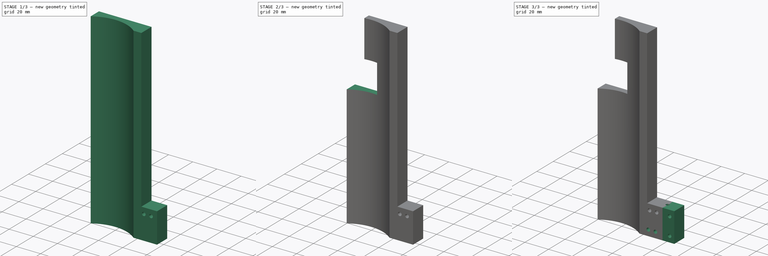
[diagram: build sequence overview — one tinted view per stage of 3, left to right]
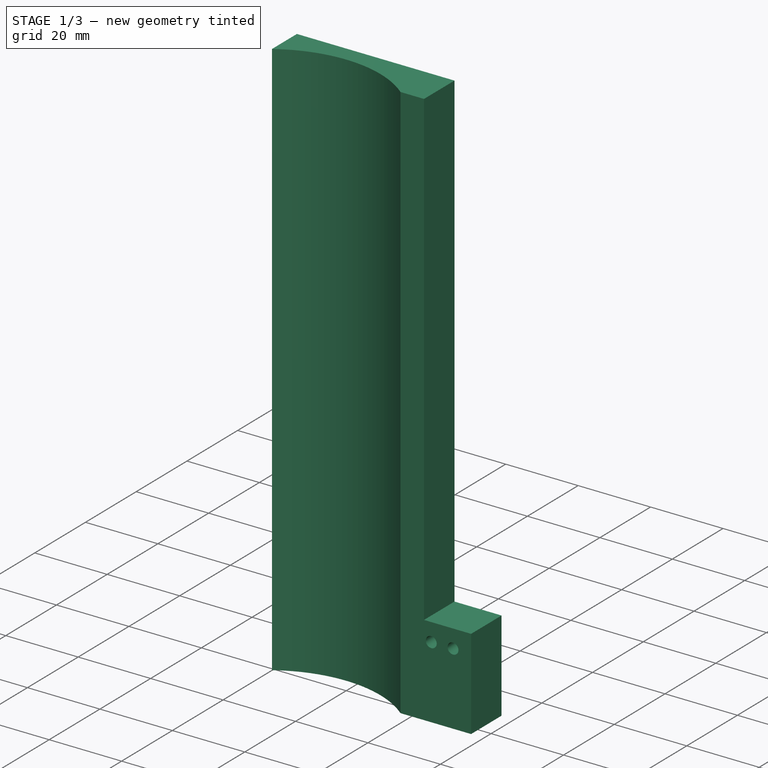
[diagram: stage 1 of 3 — iso view after this stage's code; geometry added in this stage tinted green]
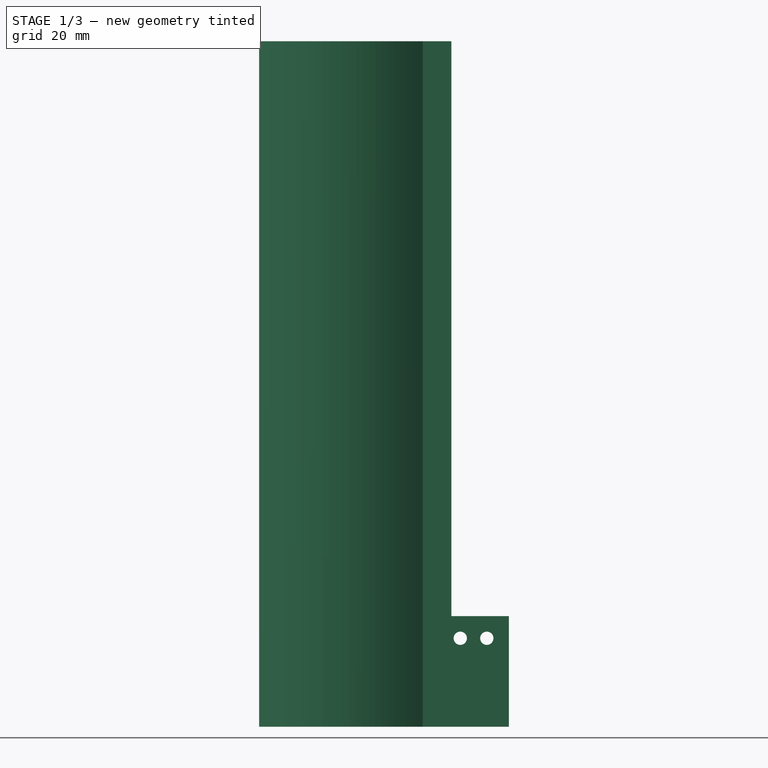
[diagram: stage 1 of 3 — front view after this stage's code; geometry added in this stage tinted green]
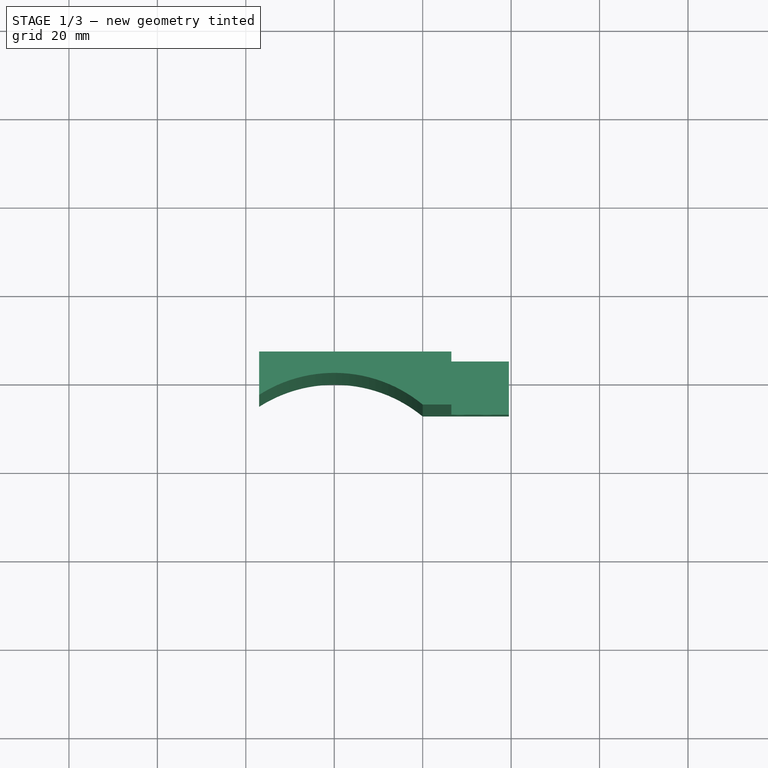
[diagram: stage 1 of 3 — top view after this stage's code; geometry added in this stage tinted green]
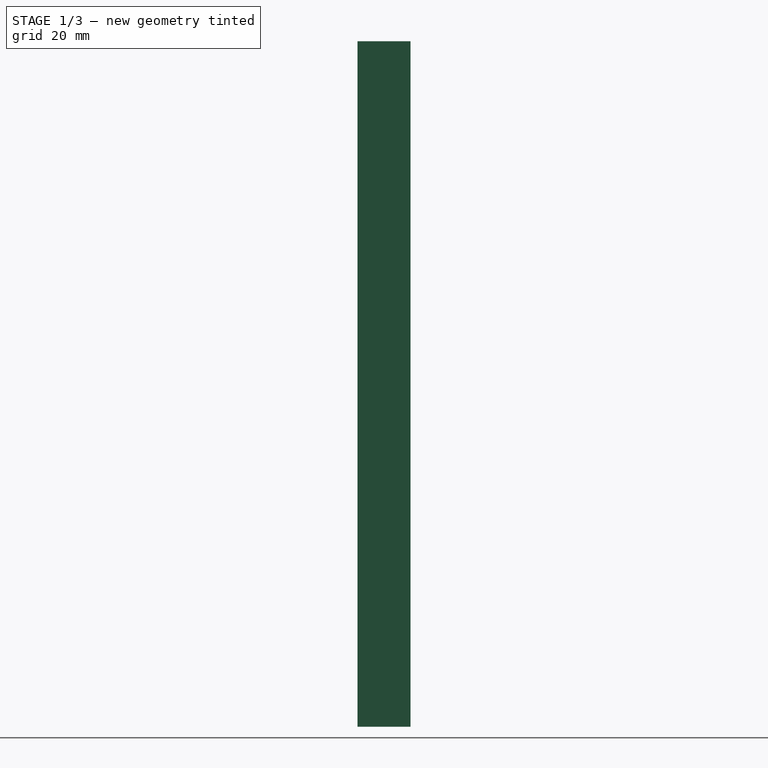
[diagram: stage 1 of 3 — right view after this stage's code; geometry added in this stage tinted green]
FCSTD DOCUMENT  (FreeCAD 0.16R6707 (Git))
Label: pince_secondaire_droite
License: All rights reserved
LicenseURL: http://en.wikipedia.org/wiki/All_rights_reserved
objects: Sketcher::SketchObject×8, PartDesign::Pocket×6, PartDesign::Pad×2
note: 24 computed .brp shape members not serialized (recipe doc carries the construction recipe); baked Part::Feature solids carry a one-line shape summary decoded from their .brp

FEATURE [Sketcher::SketchObject] Sketch
  sketch-geometry (7):
    g0: LineSegment StartX=39.5 StartY=4.83619 StartZ=0 EndX=-20 EndY=4.83619 EndZ=0
    g1: LineSegment StartX=-20 StartY=4.83619 StartZ=0 EndX=-20 EndY=-7.16381 EndZ=0
    g2: GeomPoint [constr] X=20 Y=-7.16381 Z=0
    g3: ArcOfCircle CenterX=0 CenterY=-31.5 CenterZ=0 NormalX=0 NormalY=0 NormalZ=1 Radius=31.5 StartAngle=0.882891 EndAngle=2.2587
    g4: LineSegment StartX=20 StartY=-7.16381 StartZ=0 EndX=39.5 EndY=-7.16381 EndZ=0
    g5: GeomPoint [constr] X=42.5 Y=-1.16381 Z=0
    g6: LineSegment StartX=39.5 StartY=4.83619 StartZ=0 EndX=39.5 EndY=-7.16381 EndZ=0
  constraints (19):
    c: Coincident(g0,g1)
    c: Horizontal(g0)
    c: Vertical(g1)
    c: DistanceX(g1,g-1) = 20
    c: DistanceX(g-1,g2) = 20
    c: DistanceY(g1,g2) = 0
    c: Coincident(g3,g1)
    c: Coincident(g3,g2)
    c: PointOnObject(g-1,g3)
    c: DistanceY(g3) = -31.5
    c: DistanceY(g2,g4) = 0
    c: Coincident(g4,g2)
    c: DistanceX(g-1,g4) = 39.5
    c: DistanceY(g2,g5) = 6
    c: DistanceX(g-1,g5) = 42.5
    c: Coincident(g6,g0)
    c: Coincident(g6,g4)
    c: Vertical(g6)
    c: Distance(g6) = 12
FEATURE [PartDesign::Pad] Pad
  Length = 155
  Length2 = 100
  Reversed = true
  Sketch = -> Sketch
  Type = 0
FEATURE [Sketcher::SketchObject] Sketch001
  Placement = pos=(0,-7.16381,0) rot=(1,0,0;1.5708rad)
  Support = -> Pad [Face4]
  sketch-geometry (6):
    g0: LineSegment StartX=26.5 StartY=-130 StartZ=0 EndX=39.5 EndY=-130 EndZ=0
    g1: LineSegment StartX=39.5 StartY=-130 StartZ=0 EndX=39.5 EndY=0 EndZ=0
    g2: LineSegment StartX=39.5 StartY=0 StartZ=0 EndX=26.5 EndY=0 EndZ=0
    g3: LineSegment StartX=26.5 StartY=0 StartZ=0 EndX=26.5 EndY=-130 EndZ=0
    g4: Circle CenterX=28.5 CenterY=-135 CenterZ=0 NormalX=0 NormalY=0 NormalZ=1 Radius=1.5
    g5: Circle CenterX=34.5 CenterY=-135 CenterZ=0 NormalX=0 NormalY=0 NormalZ=1 Radius=1.5
  constraints (18):
    c: Coincident(g0,g1)
    c: Coincident(g1,g2)
    c: Coincident(g2,g3)
    c: Coincident(g3,g0)
    c: Horizontal(g0)
    c: Horizontal(g2)
    c: Vertical(g1)
    c: Vertical(g3)
    c: DistanceX(g1) = 39.5
    c: Distance(g0) = 13
    c: DistanceY(g1) = 0
    c: DistanceY(g4,g5) = 0
    c: DistanceX(g4,g5) = 6
    c: DistanceX(g0,g4) = 2
    c: Radius(g4) = 1.5
    c: Equal(g4,g5)
    c: DistanceY(g0,g4) = -5
    c: Distance(g3) = 130
FEATURE [PartDesign::Pocket] Pocket
  Length = 5
  Sketch = -> Sketch001
  Type = 1
FEATURE [Sketcher::SketchObject] Sketch002
  Placement = pos=(0,0,-155) rot=(1,0,0;3.14159rad)
  Support = -> Pocket [Face6]
  sketch-geometry (4):
    g0: LineSegment StartX=-22.5832 StartY=11.7343 StartZ=0 EndX=-17 EndY=11.7343 EndZ=0
    g1: LineSegment StartX=-17 StartY=11.7343 StartZ=0 EndX=-17 EndY=-12.2158 EndZ=0
    g2: LineSegment StartX=-17 StartY=-12.2158 StartZ=0 EndX=-22.5832 EndY=-12.2158 EndZ=0
    g3: LineSegment StartX=-22.5832 StartY=-12.2158 StartZ=0 EndX=-22.5832 EndY=11.7343 EndZ=0
  constraints (9):
    c: Coincident(g0,g1)
    c: Coincident(g1,g2)
    c: Coincident(g2,g3)
    c: Coincident(g3,g0)
    c: Horizontal(g0)
    c: Horizontal(g2)
    c: Vertical(g1)
    c: Vertical(g3)
    c: DistanceX(g1,g-1) = 17
FEATURE [PartDesign::Pocket] Pocket001
  Length = 5
  Sketch = -> Sketch002
  Type = 1
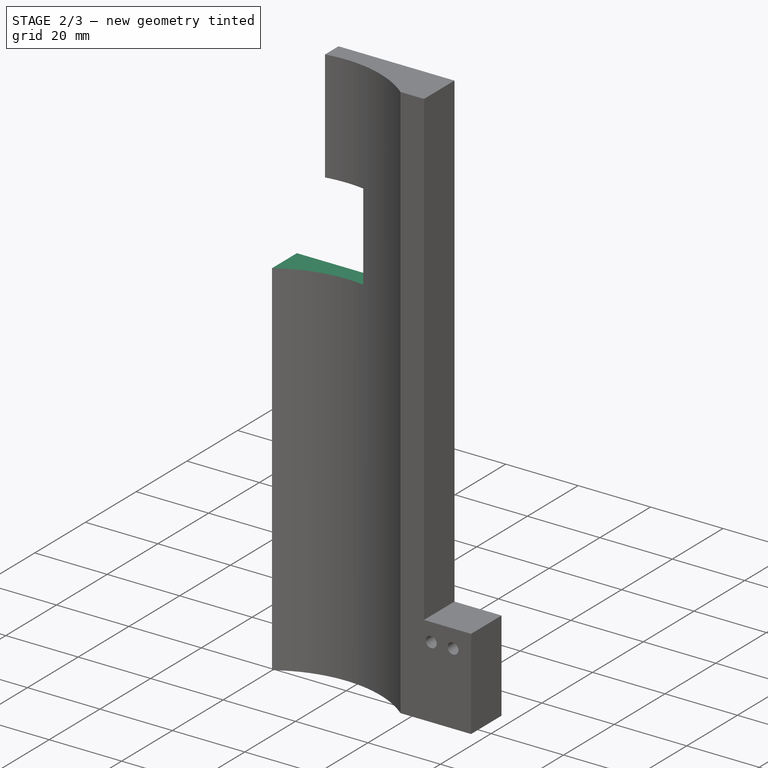
[diagram: stage 2 of 3 — iso view after this stage's code; geometry added in this stage tinted green]
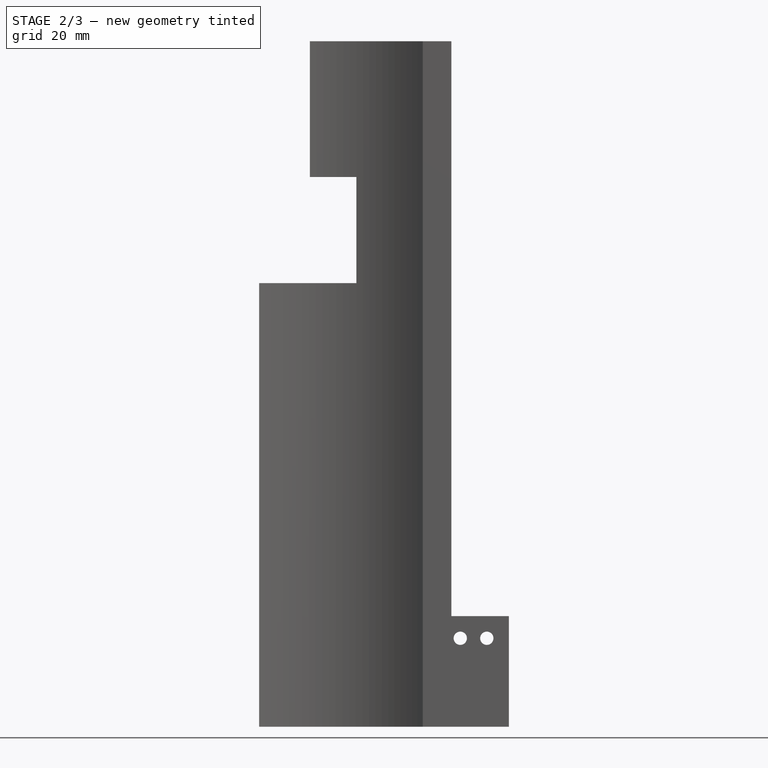
[diagram: stage 2 of 3 — front view after this stage's code; geometry added in this stage tinted green]
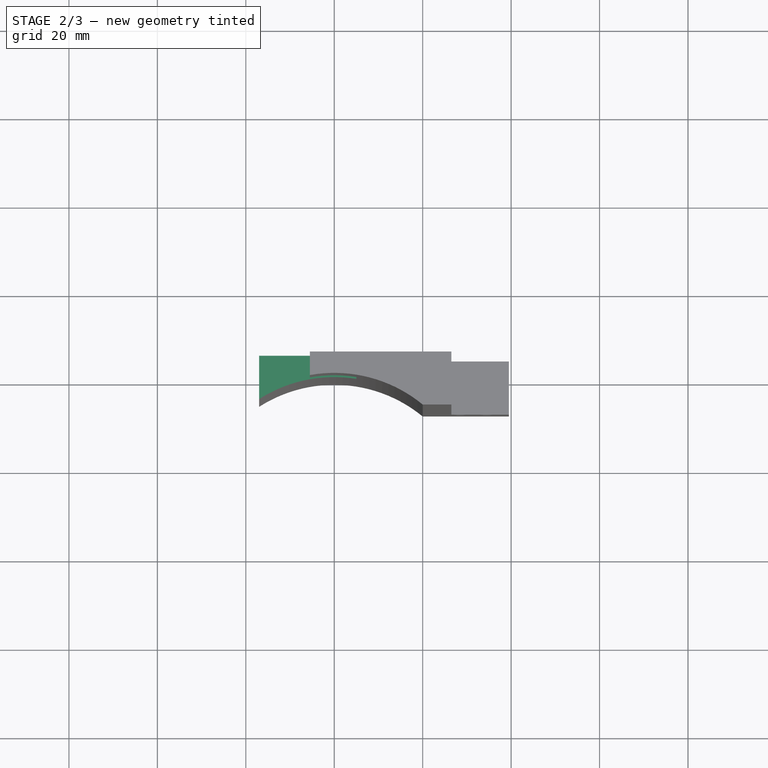
[diagram: stage 2 of 3 — top view after this stage's code; geometry added in this stage tinted green]
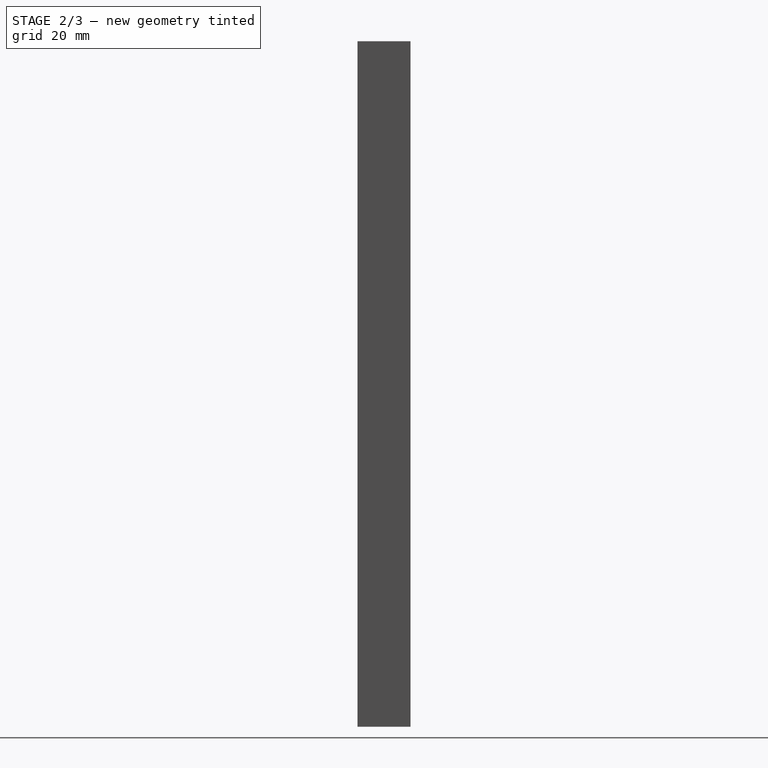
[diagram: stage 2 of 3 — right view after this stage's code; geometry added in this stage tinted green]
FEATURE [Sketcher::SketchObject] Sketch003
  Placement = pos=(0,4.83619,0) rot=(0,0.707107,0.707107;3.14159rad)
  Support = -> Pocket001 [Face1]
  sketch-geometry (4):
    g0: LineSegment StartX=-5 StartY=-54.7 StartZ=0 EndX=17 EndY=-54.7 EndZ=0
    g1: LineSegment StartX=17 StartY=-54.7 StartZ=0 EndX=17 EndY=-30.7 EndZ=0
    g2: LineSegment StartX=17 StartY=-30.7 StartZ=0 EndX=-5 EndY=-30.7 EndZ=0
    g3: LineSegment StartX=-5 StartY=-30.7 StartZ=0 EndX=-5 EndY=-54.7 EndZ=0
  constraints (12):
    c: Coincident(g0,g1)
    c: Coincident(g1,g2)
    c: Coincident(g2,g3)
    c: Coincident(g3,g0)
    c: Horizontal(g0)
    c: Horizontal(g2)
    c: Vertical(g1)
    c: Vertical(g3)
    c: DistanceY(g2) = -30.7
    c: Distance(g2) = 22
    c: DistanceX(g1) = 17
    c: Distance(g3) = 24
FEATURE [PartDesign::Pocket] Pocket002
  Length = 5
  Sketch = -> Sketch003
  Type = 1
FEATURE [Sketcher::SketchObject] Sketch004
  Support = -> Pocket002 [Face4]
  sketch-geometry (4):
    g0: LineSegment StartX=-5.5 StartY=-5.52533 StartZ=0 EndX=-17 EndY=-5.52533 EndZ=0
    g1: LineSegment StartX=-17 StartY=-5.52533 StartZ=0 EndX=-17 EndY=7.39931 EndZ=0
    g2: LineSegment StartX=-17 StartY=7.39931 StartZ=0 EndX=-5.5 EndY=7.39931 EndZ=0
    g3: LineSegment StartX=-5.5 StartY=7.39931 StartZ=0 EndX=-5.5 EndY=-5.52533 EndZ=0
  constraints (10):
    c: Coincident(g0,g1)
    c: Coincident(g1,g2)
    c: Coincident(g2,g3)
    c: Coincident(g3,g0)
    c: Horizontal(g0)
    c: Horizontal(g2)
    c: Vertical(g1)
    c: Vertical(g3)
    c: Distance(g2) = 11.5
    c: DistanceX(g1) = -17
FEATURE [PartDesign::Pocket] Pocket003
  Length = 31
  Sketch = -> Sketch004
  Type = 0
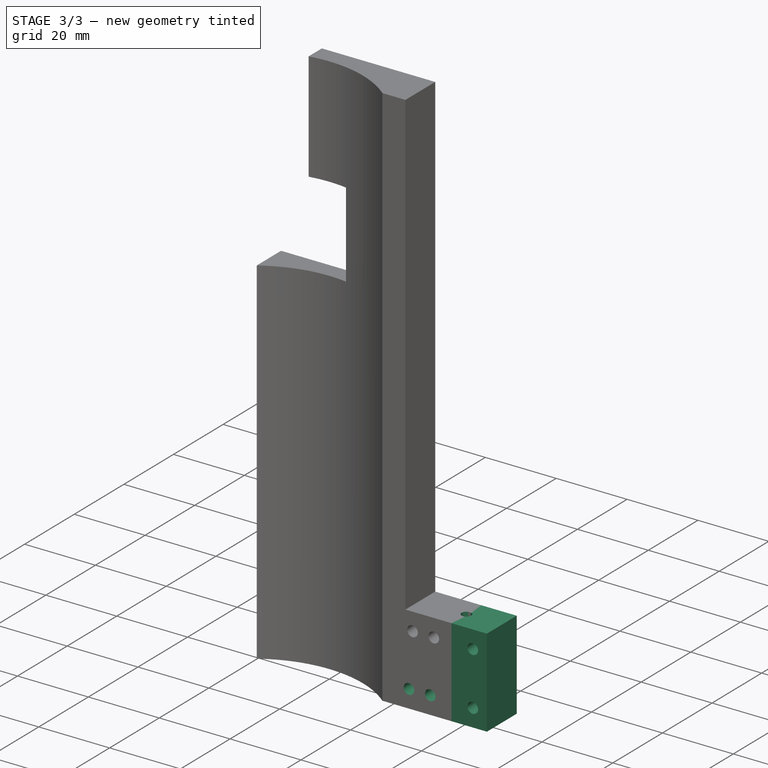
[diagram: stage 3 of 3 — iso view after this stage's code; geometry added in this stage tinted green]
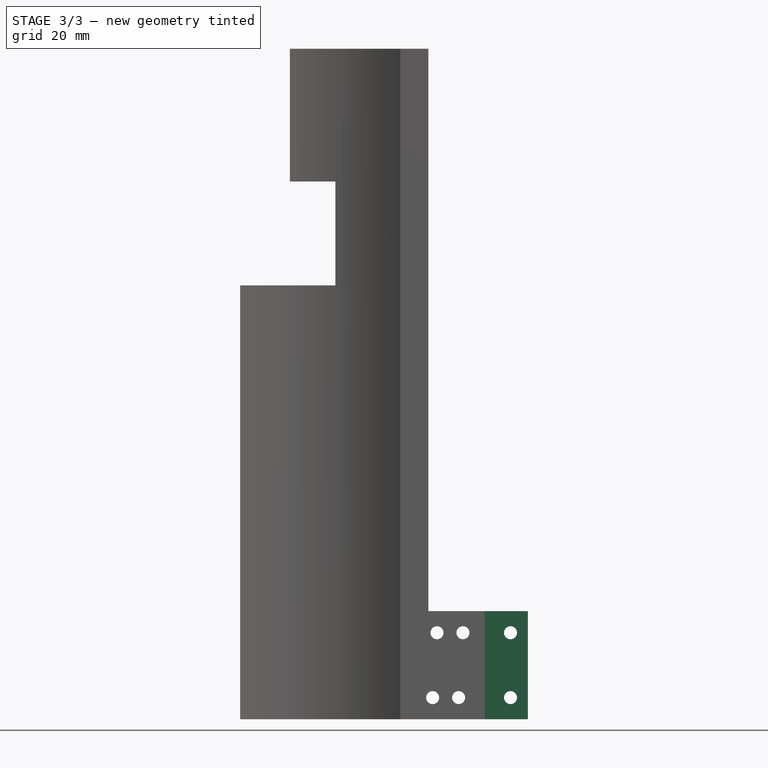
[diagram: stage 3 of 3 — front view after this stage's code; geometry added in this stage tinted green]
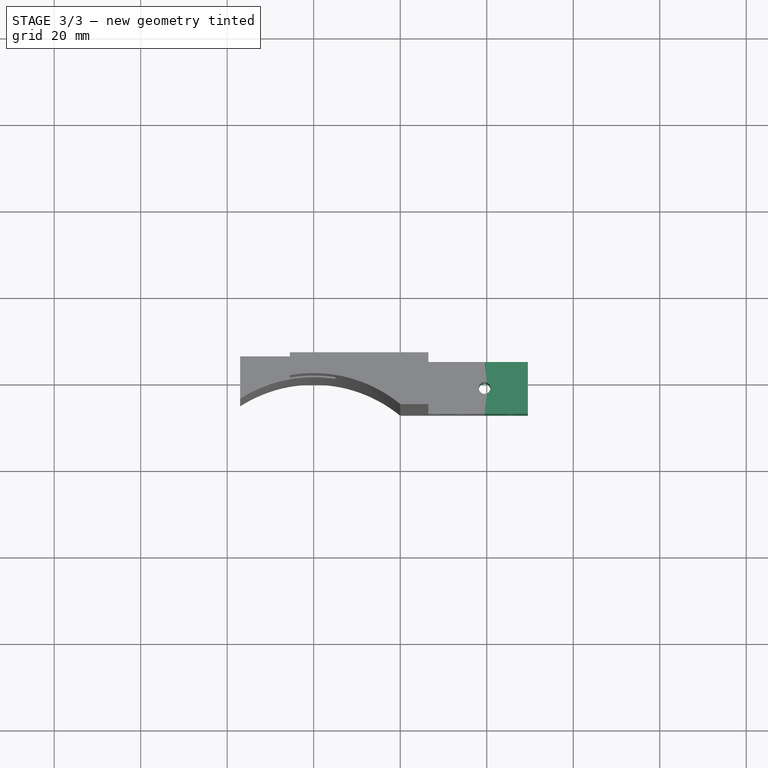
[diagram: stage 3 of 3 — top view after this stage's code; geometry added in this stage tinted green]
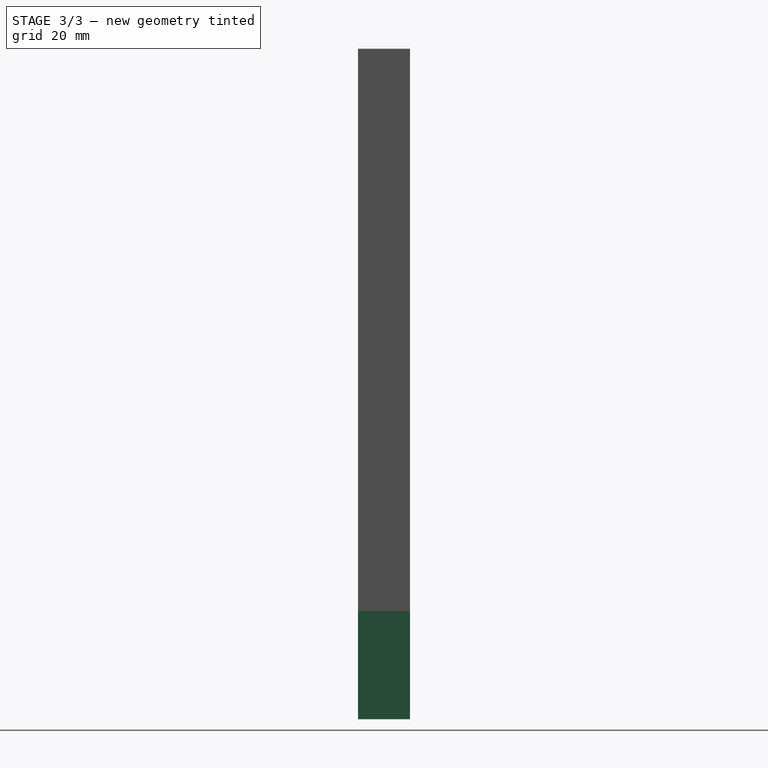
[diagram: stage 3 of 3 — right view after this stage's code; geometry added in this stage tinted green]
FEATURE [Sketcher::SketchObject] Sketch005
  Placement = pos=(39.5,0,0) rot=(0.57735,0.57735,0.57735;2.0944rad)
  Support = -> Pocket003 [Face11]
  sketch-geometry (4):
    g0: LineSegment StartX=-7.16381 StartY=-130 StartZ=0 EndX=4.83619 EndY=-130 EndZ=0
    g1: LineSegment StartX=4.83619 StartY=-130 StartZ=0 EndX=4.83619 EndY=-155 EndZ=0
    g2: LineSegment StartX=4.83619 StartY=-155 StartZ=0 EndX=-7.16381 EndY=-155 EndZ=0
    g3: LineSegment StartX=-7.16381 StartY=-155 StartZ=0 EndX=-7.16381 EndY=-130 EndZ=0
  constraints (12):
    c: Coincident(g0,g1)
    c: Coincident(g1,g2)
    c: Coincident(g2,g3)
    c: Coincident(g3,g0)
    c: Horizontal(g0)
    c: Horizontal(g2)
    c: Vertical(g1)
    c: Vertical(g3)
    c: Distance(g3) = 25
    c: Distance(g0) = 12
    c: DistanceX(g0) = 4.83619
    c: DistanceY(g1) = -155
FEATURE [PartDesign::Pad] Pad001
  Length = 10
  Length2 = 100
  Sketch = -> Sketch005
  Type = 0
FEATURE [Sketcher::SketchObject] Sketch006
  Placement = pos=(0,0,-155) rot=(1,0,0;3.14159rad)
  Support = -> Pad001 [Face7]
  sketch-geometry (1):
    g0: Circle CenterX=39.5 CenterY=1.16381 CenterZ=0 NormalX=0 NormalY=0 NormalZ=1 Radius=1.35
  constraints (3):
    c: DistanceX(g0) = 39.5
    c: DistanceY(g0) = 1.16381
    c: Radius(g0) = 1.35
FEATURE [PartDesign::Pocket] Pocket004
  Length = 5
  Sketch = -> Sketch006
  Type = 1
FEATURE [Sketcher::SketchObject] Sketch007
  Placement = pos=(0,4.83619,0) rot=(0,0.707107,0.707107;3.14159rad)
  Support = -> Pocket004 [Face21]
  sketch-geometry (5):
    g0: GeomPoint [constr] X=-39.5 Y=-135 Z=0
    g1: Circle CenterX=-45.5 CenterY=-135 CenterZ=0 NormalX=0 NormalY=0 NormalZ=1 Radius=1.5
    g2: Circle CenterX=-45.5 CenterY=-150 CenterZ=0 NormalX=0 NormalY=0 NormalZ=1 Radius=1.5
    g3: Circle CenterX=-33.5 CenterY=-150 CenterZ=0 NormalX=0 NormalY=0 NormalZ=1 Radius=1.5
    g4: Circle CenterX=-27.5 CenterY=-150 CenterZ=0 NormalX=0 NormalY=0 NormalZ=1 Radius=1.5
  constraints (14):
    c: DistanceX(g0) = -39.5
    c: DistanceY(g0) = -135
    c: DistanceY(g0,g1) = 0
    c: DistanceX(g1,g0) = 6
    c: DistanceY(g2,g1) = 15
    c: DistanceY(g2,g3) = 0
    c: DistanceY(g3,g4) = 0
    c: DistanceX(g2,g3) = 12
    c: DistanceX(g3,g4) = 6
    c: DistanceX(g2,g1) = 0
    c: Radius(g2) = 1.5
    c: Equal(g2,g1)
    c: Equal(g2,g3)
    c: Equal(g2,g4)
FEATURE [PartDesign::Pocket] Pocket005
  Length = 5
  Sketch = -> Sketch007
  Type = 1
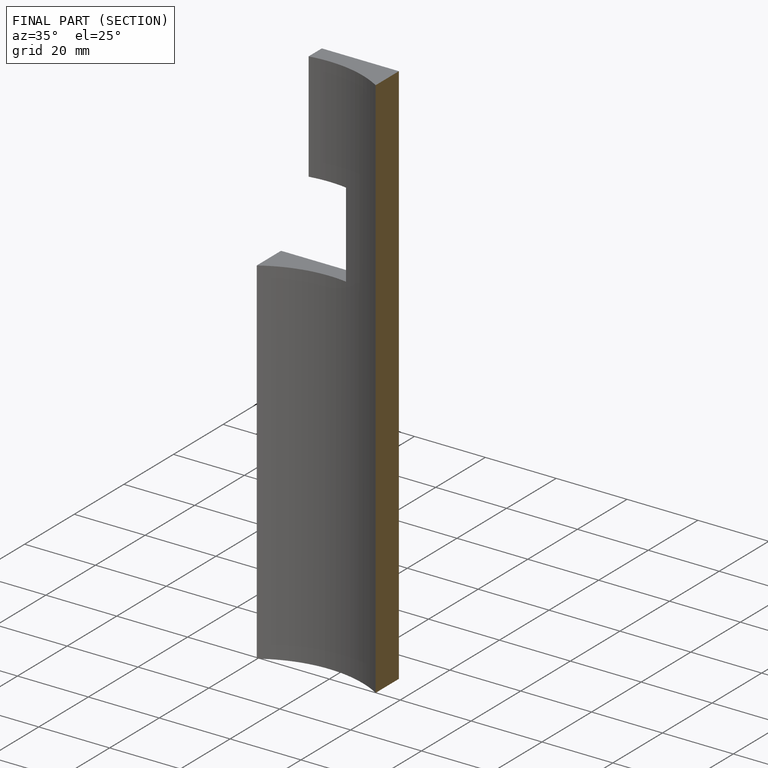
[diagram: finished part — half-section view (interior)]
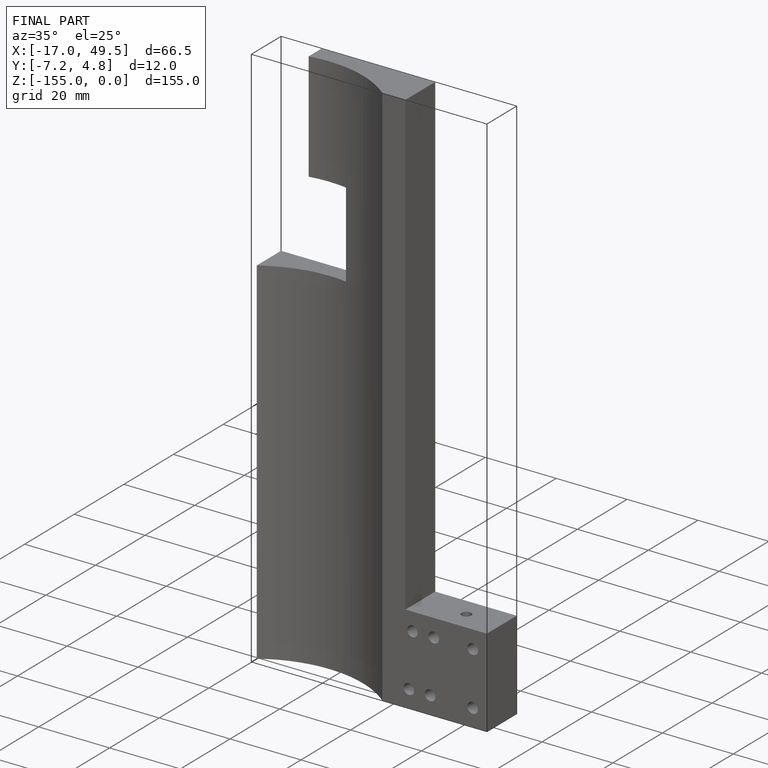
[diagram: finished part — iso view with bounding-box wireframe]
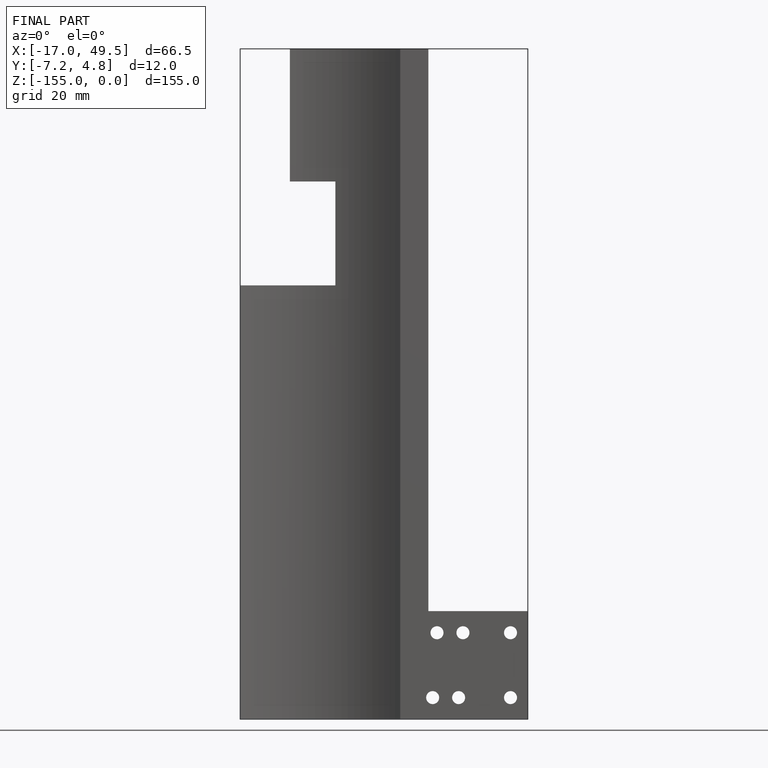
[diagram: finished part — front view with bounding-box wireframe]
